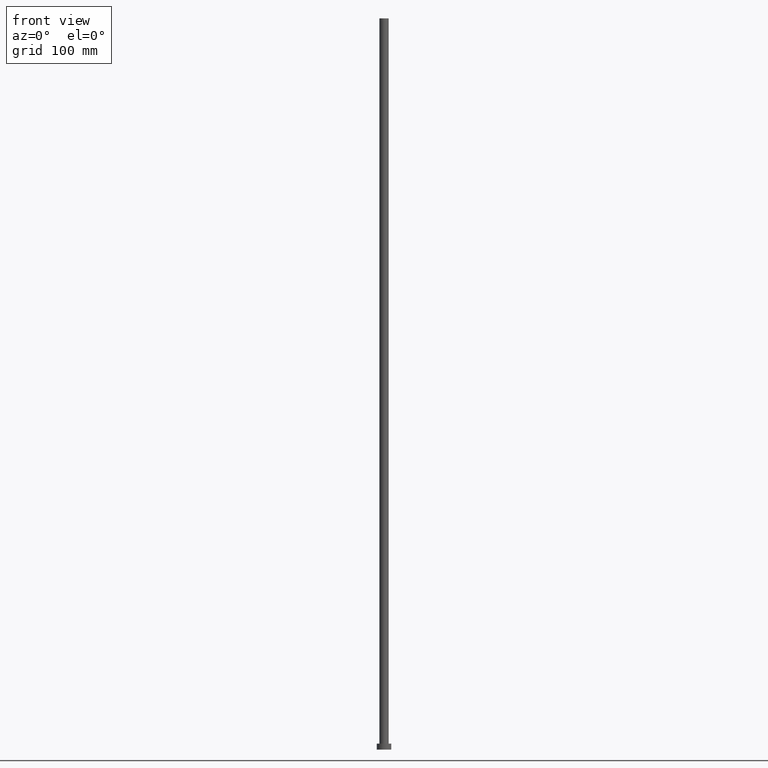
[diagram: clean part render]
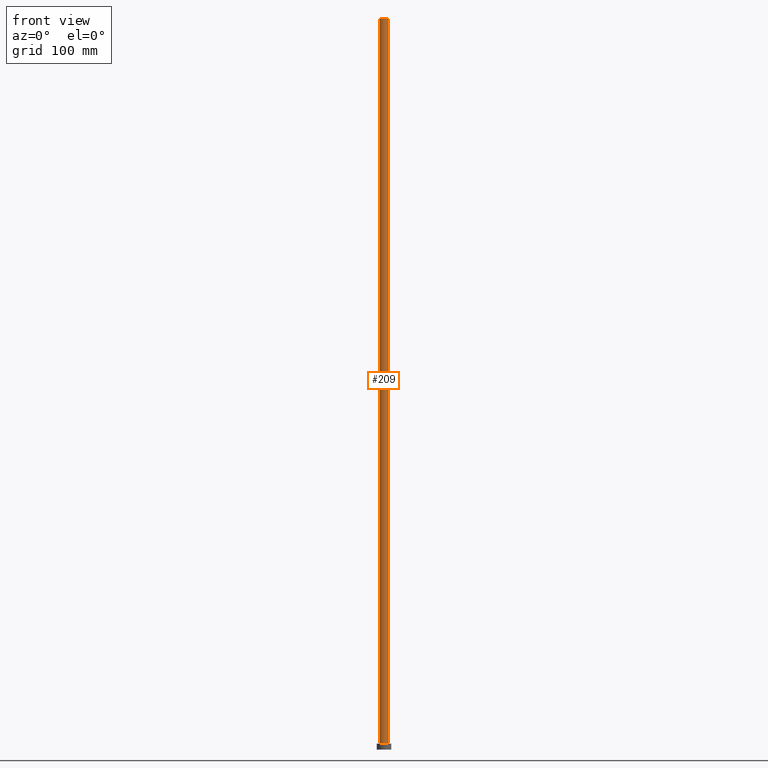
[diagram: same view with one face highlighted and labeled with its STEP entity id]
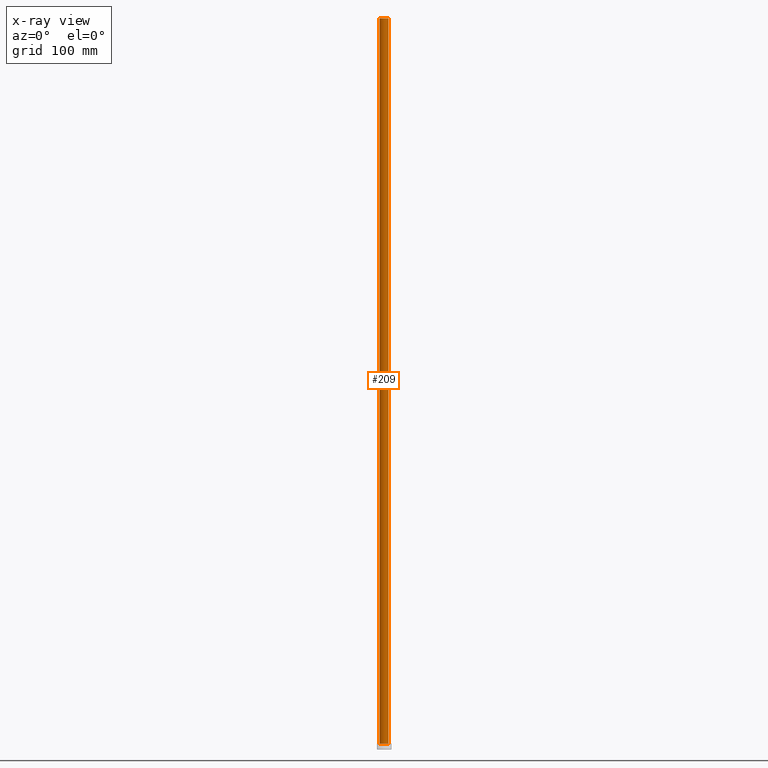
[diagram: x-ray of the same camera — body ghosted, the highlighted face saturated]
A machine part, front view. The second image highlights one B-rep face of the part: STEP entity #209.
The next image is the same camera in x-ray: the body ghosted, the highlighted face saturated — about 0% of this face is hidden behind the body in this view.
In plain terms, the highlighted cylindrical surface (edge-blend (fillet) strip) has radius 5 mm, axis along (-0, -0, -1).
Its self-contained STEP definition (entity closure, byte-faithful):
#22 = LINE ( 'NONE', #161, #100 ) ;
#41 = EDGE_LOOP ( 'NONE', ( #56, #91, #250, #58 ) ) ;
#56 = ORIENTED_EDGE ( 'NONE', *, *, #112, .F. ) ;
#57 = EDGE_CURVE ( 'NONE', #165, #174, #248, .T. ) ;
#58 = ORIENTED_EDGE ( 'NONE', *, *, #96, .T. ) ;
#63 = VECTOR ( 'NONE', #66, 1000.000000000000000 ) ;
#66 = DIRECTION ( 'NONE',  ( -0.000000000000000000, -0.000000000000000000, -1.000000000000000000 ) ) ;
#69 = DIRECTION ( 'NONE',  ( 0.000000000000000000, 0.000000000000000000, 1.000000000000000000 ) ) ;
#80 = CARTESIAN_POINT ( 'NONE',  ( 0.000000000000000000, 0.000000000000000000, 799.9999999999998863 ) ) ;
#82 = VERTEX_POINT ( 'NONE', #108 ) ;
#91 = ORIENTED_EDGE ( 'NONE', *, *, #57, .F. ) ;
#95 = AXIS2_PLACEMENT_3D ( 'NONE', #127, #104, #120 ) ;
#96 = EDGE_CURVE ( 'NONE', #136, #82, #159, .T. ) ;
#100 = VECTOR ( 'NONE', #163, 1000.000000000000000 ) ;
#101 = CARTESIAN_POINT ( 'NONE',  ( 0.000000000000000000, 0.000000000000000000, 6.500000000000000000 ) ) ;
#104 = DIRECTION ( 'NONE',  ( 0.000000000000000000, 0.000000000000000000, 1.000000000000000000 ) ) ;
#108 = CARTESIAN_POINT ( 'NONE',  ( 5.000000000000000888, 6.123233995736767268E-16, 6.500000000000000000 ) ) ;
#111 = CARTESIAN_POINT ( 'NONE',  ( 5.000000000000000888, 6.123233995736767268E-16, 799.9999999999998863 ) ) ;
#112 = EDGE_CURVE ( 'NONE', #174, #82, #22, .T. ) ;
#120 = DIRECTION ( 'NONE',  ( 1.000000000000000000, 0.000000000000000000, 0.000000000000000000 ) ) ;
#127 = CARTESIAN_POINT ( 'NONE',  ( 0.000000000000000000, 0.000000000000000000, 799.9999999999998863 ) ) ;
#136 = VERTEX_POINT ( 'NONE', #242 ) ;
#150 = DIRECTION ( 'NONE',  ( -1.000000000000000000, 0.000000000000000000, 0.000000000000000000 ) ) ;
#157 = EDGE_CURVE ( 'NONE', #165, #136, #172, .T. ) ;
#159 = CIRCLE ( 'NONE', #191, 5.000000000000000888 ) ;
#161 = CARTESIAN_POINT ( 'NONE',  ( 5.000000000000000888, 6.123233995736767268E-16, 799.9999999999998863 ) ) ;
#163 = DIRECTION ( 'NONE',  ( -0.000000000000000000, -0.000000000000000000, -1.000000000000000000 ) ) ;
#165 = VERTEX_POINT ( 'NONE', #178 ) ;
#166 = AXIS2_PLACEMENT_3D ( 'NONE', #80, #223, #150 ) ;
#169 = FACE_OUTER_BOUND ( 'NONE', #41, .T. ) ;
#172 = LINE ( 'NONE', #200, #63 ) ;
#174 = VERTEX_POINT ( 'NONE', #111 ) ;
#178 = CARTESIAN_POINT ( 'NONE',  ( -5.000000000000000888, 0.000000000000000000, 799.9999999999998863 ) ) ;
#182 = CYLINDRICAL_SURFACE ( 'NONE', #166, 5.000000000000000888 ) ;
#191 = AXIS2_PLACEMENT_3D ( 'NONE', #101, #69, #234 ) ;
#200 = CARTESIAN_POINT ( 'NONE',  ( -5.000000000000000888, 0.000000000000000000, 799.9999999999998863 ) ) ;
#209 = ADVANCED_FACE ( 'NONE', ( #169 ), #182, .T. ) ;
#223 = DIRECTION ( 'NONE',  ( -0.000000000000000000, -0.000000000000000000, -1.000000000000000000 ) ) ;
#234 = DIRECTION ( 'NONE',  ( 1.000000000000000000, 0.000000000000000000, 0.000000000000000000 ) ) ;
#242 = CARTESIAN_POINT ( 'NONE',  ( -5.000000000000000888, 0.000000000000000000, 6.500000000000000000 ) ) ;
#248 = CIRCLE ( 'NONE', #95, 5.000000000000000888 ) ;
#250 = ORIENTED_EDGE ( 'NONE', *, *, #157, .T. ) ;